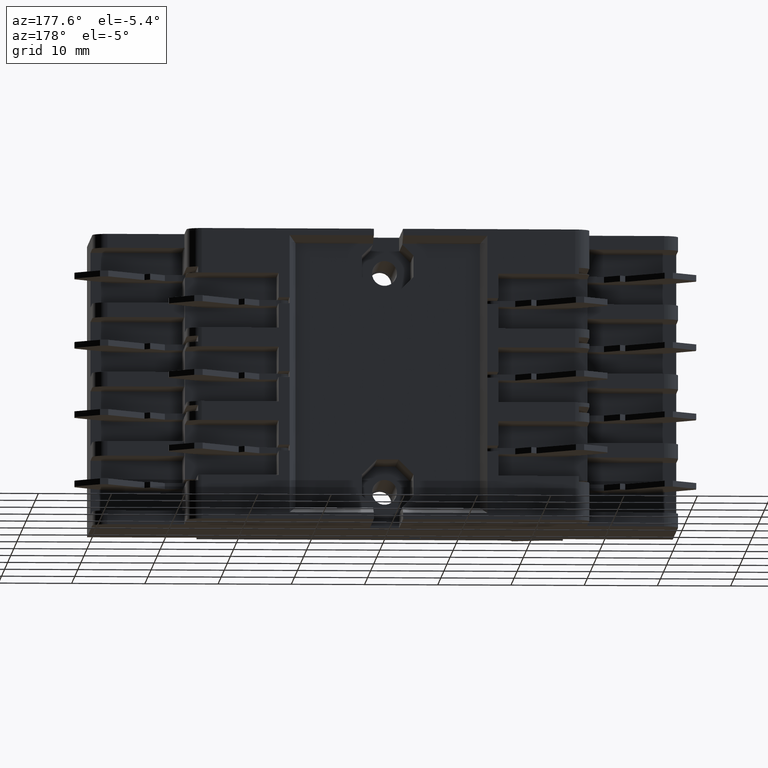
[diagram: clean part render]
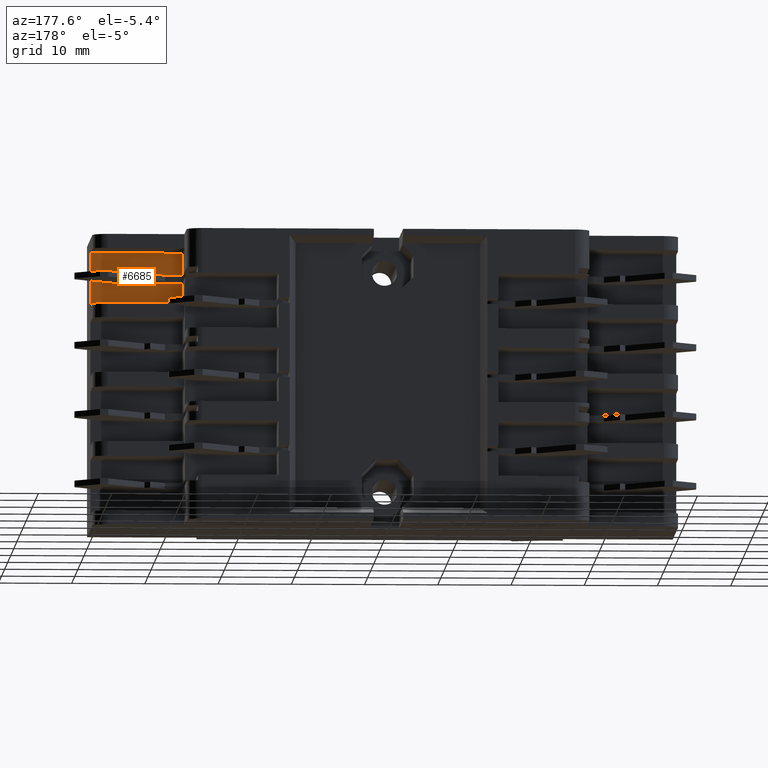
[diagram: same view with one face highlighted and labeled with its STEP entity id]
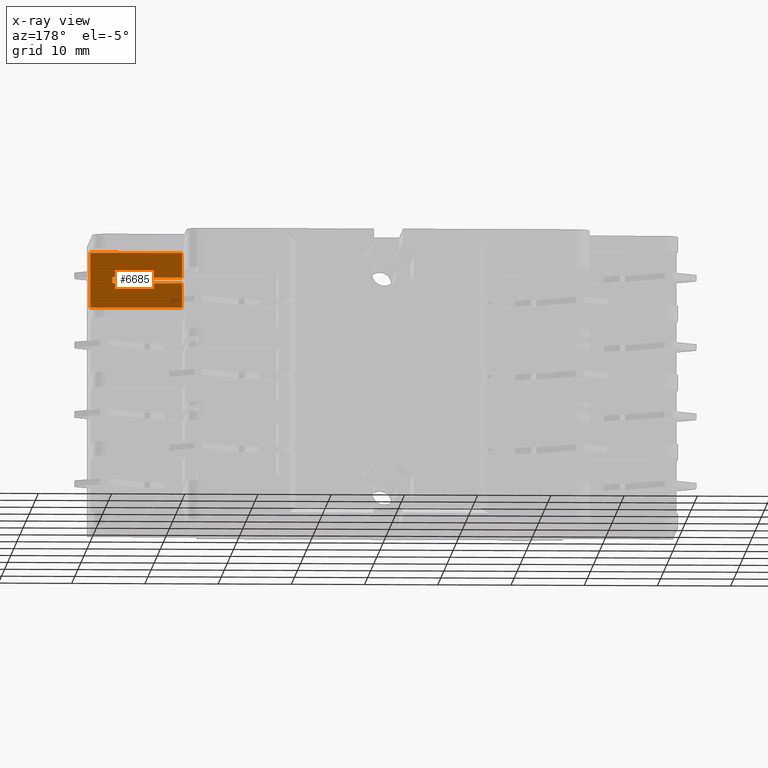
[diagram: x-ray of the same camera — body ghosted, the highlighted face saturated]
A machine part, auxiliary view. The second image highlights one B-rep face of the part: STEP entity #6685.
The next image is the same camera in x-ray: the body ghosted, the highlighted face saturated — about 2% of this face is hidden behind the body in this view.
In plain terms, the highlighted planar face has unit normal (0, 1, 0).
Its self-contained STEP definition (entity closure, byte-faithful):
#6031=CARTESIAN_POINT('',(39.999999999999993,11.500000000000012,-9.400000000000011));
#6032=VERTEX_POINT('',#6031);
#6039=CARTESIAN_POINT('',(39.999999999999993,11.500000000000012,-1.900000000000017));
#6040=VERTEX_POINT('',#6039);
#6041=CARTESIAN_POINT('',(39.999999999999993,11.500000000000012,-9.400000000000011));
#6042=DIRECTION('',(0.0,0.0,1.0));
#6043=VECTOR('',#6042,7.499999999999994);
#6044=LINE('',#6041,#6043);
#6045=EDGE_CURVE('',#6032,#6040,#6044,.T.);
#6623=CARTESIAN_POINT('',(33.750000000000000,11.500000000000012,-5.650000000000014));
#6624=DIRECTION('',(0.0,1.0,0.0));
#6625=DIRECTION('',(0.0,0.0,1.0));
#6626=AXIS2_PLACEMENT_3D('',#6623,#6624,#6625);
#6627=PLANE('',#6626);
#6628=CARTESIAN_POINT('',(36.999999999999993,11.500000000000014,-5.250000000000013));
#6629=VERTEX_POINT('',#6628);
#6630=CARTESIAN_POINT('',(27.499999999999993,11.500000000000012,-5.250000000000012));
#6631=VERTEX_POINT('',#6630);
#6632=CARTESIAN_POINT('',(36.999999999999993,11.500000000000014,-5.250000000000013));
#6633=DIRECTION('',(-1.0,0.0,0.0));
#6634=VECTOR('',#6633,9.500000000000000);
#6635=LINE('',#6632,#6634);
#6636=EDGE_CURVE('',#6629,#6631,#6635,.T.);
#6637=ORIENTED_EDGE('',*,*,#6636,.T.);
#6638=CARTESIAN_POINT('',(27.499999999999993,11.500000000000012,-1.900000000000015));
#6639=VERTEX_POINT('',#6638);
#6640=CARTESIAN_POINT('',(27.499999999999993,11.500000000000007,-5.250000000000012));
#6641=DIRECTION('',(0.0,0.0,1.0));
#6642=VECTOR('',#6641,3.349999999999998);
#6643=LINE('',#6640,#6642);
#6644=EDGE_CURVE('',#6631,#6639,#6643,.T.);
#6645=ORIENTED_EDGE('',*,*,#6644,.T.);
#6646=CARTESIAN_POINT('',(27.499999999999993,11.500000000000007,-1.900000000000015));
#6647=DIRECTION('',(1.0,0.0,0.0));
#6648=VECTOR('',#6647,12.500000000000000);
#6649=LINE('',#6646,#6648);
#6650=EDGE_CURVE('',#6639,#6040,#6649,.T.);
#6651=ORIENTED_EDGE('',*,*,#6650,.T.);
#6652=ORIENTED_EDGE('',*,*,#6045,.F.);
#6653=CARTESIAN_POINT('',(27.499999999999993,11.500000000000012,-9.400000000000009));
#6654=VERTEX_POINT('',#6653);
#6655=CARTESIAN_POINT('',(39.999999999999993,11.500000000000011,-9.400000000000011));
#6656=DIRECTION('',(-1.0,0.0,0.0));
#6657=VECTOR('',#6656,12.500000000000000);
#6658=LINE('',#6655,#6657);
#6659=EDGE_CURVE('',#6032,#6654,#6658,.T.);
#6660=ORIENTED_EDGE('',*,*,#6659,.T.);
#6661=CARTESIAN_POINT('',(27.499999999999993,11.500000000000012,-6.050000000000013));
#6662=VERTEX_POINT('',#6661);
#6663=CARTESIAN_POINT('',(27.499999999999993,11.500000000000007,-9.400000000000009));
#6664=DIRECTION('',(0.0,0.0,1.0));
#6665=VECTOR('',#6664,3.349999999999996);
#6666=LINE('',#6663,#6665);
#6667=EDGE_CURVE('',#6654,#6662,#6666,.T.);
#6668=ORIENTED_EDGE('',*,*,#6667,.T.);
#6669=CARTESIAN_POINT('',(36.999999999999993,11.500000000000014,-6.050000000000014));
#6670=VERTEX_POINT('',#6669);
#6671=CARTESIAN_POINT('',(27.499999999999993,11.500000000000011,-6.050000000000013));
#6672=DIRECTION('',(1.0,0.0,0.0));
#6673=VECTOR('',#6672,9.500000000000000);
#6674=LINE('',#6671,#6673);
#6675=EDGE_CURVE('',#6662,#6670,#6674,.T.);
#6676=ORIENTED_EDGE('',*,*,#6675,.T.);
#6677=CARTESIAN_POINT('',(36.999999999999993,11.500000000000012,-6.050000000000014));
#6678=DIRECTION('',(0.0,0.0,1.0));
#6679=VECTOR('',#6678,0.800000000000001);
#6680=LINE('',#6677,#6679);
#6681=EDGE_CURVE('',#6670,#6629,#6680,.T.);
#6682=ORIENTED_EDGE('',*,*,#6681,.T.);
#6683=EDGE_LOOP('',(#6637,#6645,#6651,#6652,#6660,#6668,#6676,#6682));
#6684=FACE_OUTER_BOUND('',#6683,.T.);
#6685=ADVANCED_FACE('',(#6684),#6627,.T.);